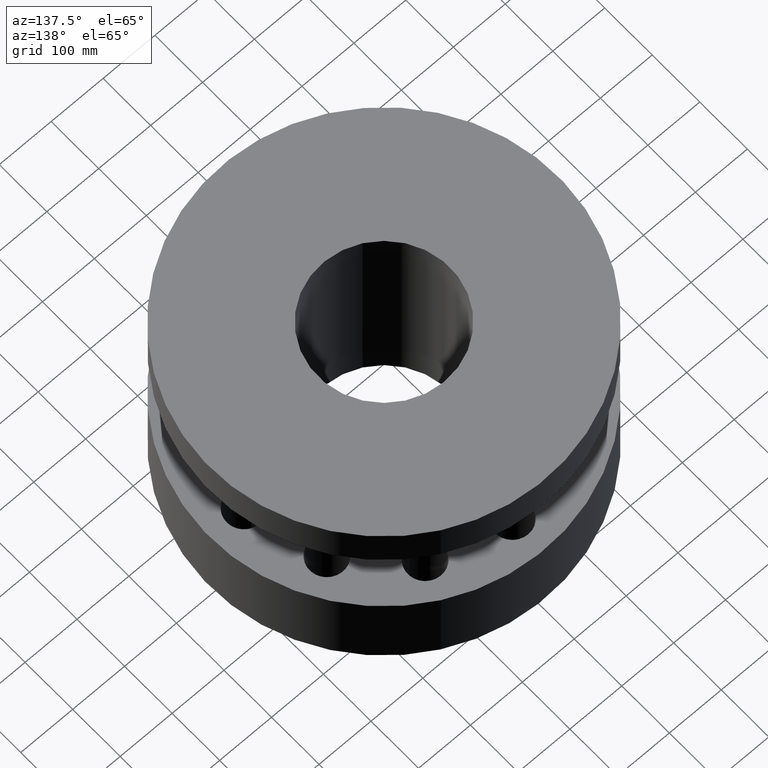
[diagram: clean part render]
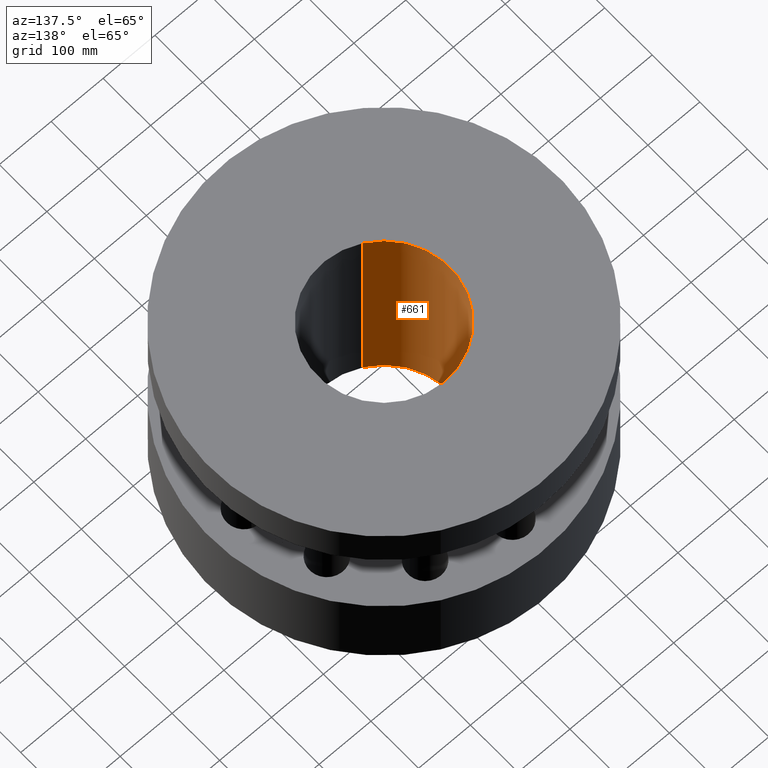
[diagram: same view with one face highlighted and labeled with its STEP entity id]
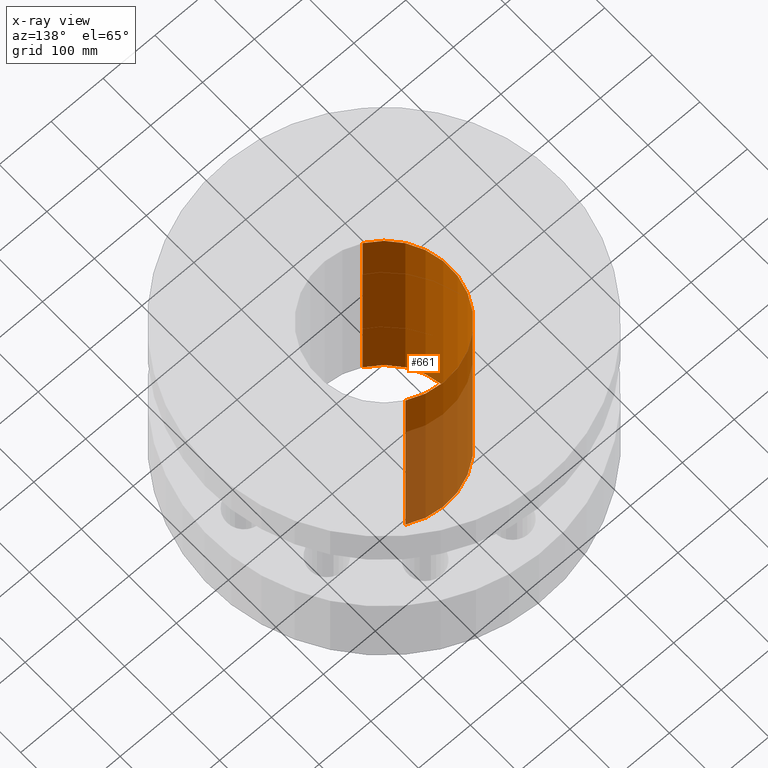
[diagram: x-ray of the same camera — body ghosted, the highlighted face saturated]
A machine part, auxiliary view. The second image highlights one B-rep face of the part: STEP entity #661.
The next image is the same camera in x-ray: the body ghosted, the highlighted face saturated — about 30% of this face is hidden behind the body in this view.
In plain terms, the highlighted cylindrical surface (partial cylindrical patch) has radius 127 mm, axis along (0, 0, -1).
Its self-contained STEP definition (entity closure, byte-faithful):
#602=AXIS2_PLACEMENT_3D('Circle Axis2P3D',#600,#601,$) ;
#622=AXIS2_PLACEMENT_3D('Cylinder Axis2P3D',#619,#620,#621) ;
#652=AXIS2_PLACEMENT_3D('Circle Axis2P3D',#650,#651,$) ;
#600=CARTESIAN_POINT('Axis2P3D Location',(0.,0.,15.7500000001)) ;
#604=CARTESIAN_POINT('Vertex',(-2.39712769303,-4.38791280947,15.7500000001)) ;
#606=CARTESIAN_POINT('Vertex',(2.39712769303,4.38791280947,15.7500000001)) ;
#619=CARTESIAN_POINT('Axis2P3D Location',(0.,0.,7.53100000003)) ;
#624=CARTESIAN_POINT('Line Origine',(2.39712769303,4.38791280947,7.53100000003)) ;
#628=CARTESIAN_POINT('Vertex',(2.39712769303,4.38791280947,-0.688000000003)) ;
#635=CARTESIAN_POINT('Vertex',(-2.39712769303,-4.38791280947,-0.688000000003)) ;
#638=CARTESIAN_POINT('Line Origine',(-2.39712769303,-4.38791280947,7.53100000003)) ;
#650=CARTESIAN_POINT('Axis2P3D Location',(0.,0.,-0.688000000003)) ;
#601=DIRECTION('Axis2P3D Direction',(0.,0.,-0.0393700787402)) ;
#620=DIRECTION('Axis2P3D Direction',(0.,0.,-0.0393700787402)) ;
#621=DIRECTION('Axis2P3D XDirection',(-0.0188750212049,-0.0345504945626,0.)) ;
#625=DIRECTION('Vector Direction',(0.,0.,-0.0393700787402)) ;
#639=DIRECTION('Vector Direction',(0.,0.,-0.0393700787402)) ;
#651=DIRECTION('Axis2P3D Direction',(0.,0.,-0.0393700787402)) ;
#626=VECTOR('Line Direction',#625,0.0393700787402) ;
#640=VECTOR('Line Direction',#639,0.0393700787402) ;
#656=ORIENTED_EDGE('',*,*,#608,.F.) ;
#657=ORIENTED_EDGE('',*,*,#642,.T.) ;
#658=ORIENTED_EDGE('',*,*,#654,.T.) ;
#659=ORIENTED_EDGE('',*,*,#630,.F.) ;
#661=ADVANCED_FACE('PartBody',(#660),#623,.F.) ;
#603=CIRCLE('generated circle',#602,5.00000000002) ;
#653=CIRCLE('generated circle',#652,5.00000000002) ;
#623=CYLINDRICAL_SURFACE('generated cylinder',#622,5.00000000002) ;
#608=EDGE_CURVE('',#605,#607,#603,.T.) ;
#630=EDGE_CURVE('',#607,#629,#627,.T.) ;
#642=EDGE_CURVE('',#605,#636,#641,.T.) ;
#654=EDGE_CURVE('',#636,#629,#653,.T.) ;
#655=EDGE_LOOP('',(#656,#657,#658,#659)) ;
#660=FACE_OUTER_BOUND('',#655,.T.) ;
#627=LINE('Line',#624,#626) ;
#641=LINE('Line',#638,#640) ;
#605=VERTEX_POINT('',#604) ;
#607=VERTEX_POINT('',#606) ;
#629=VERTEX_POINT('',#628) ;
#636=VERTEX_POINT('',#635) ;